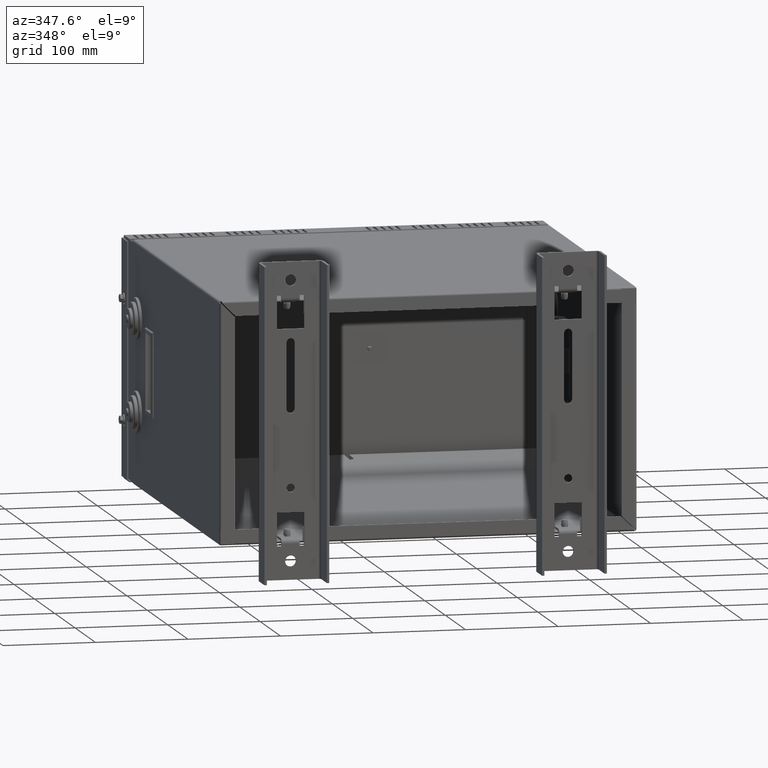
[diagram: clean part render]
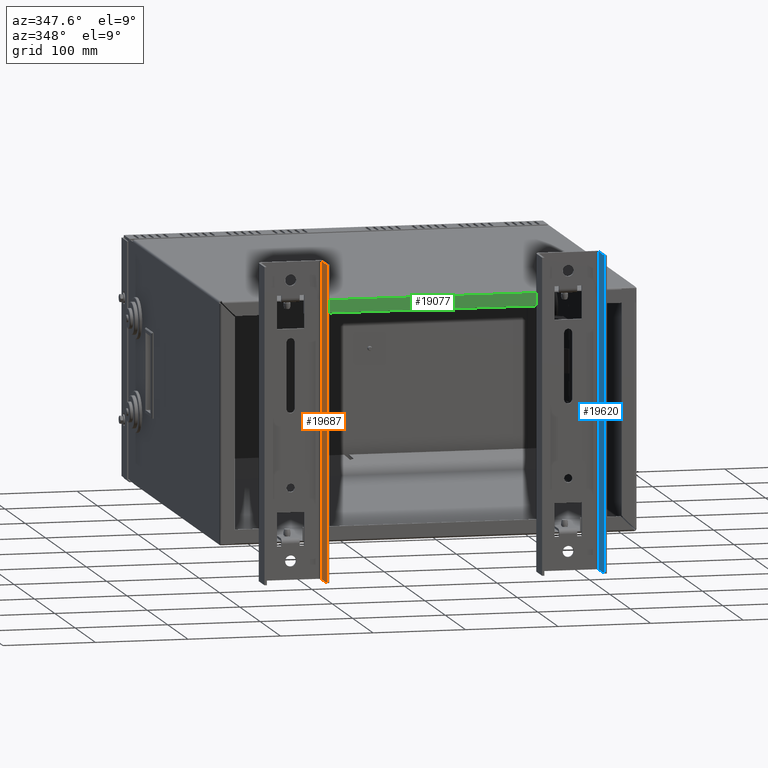
[diagram: same view with three faces highlighted in distinct colors, each labeled with its STEP entity id]
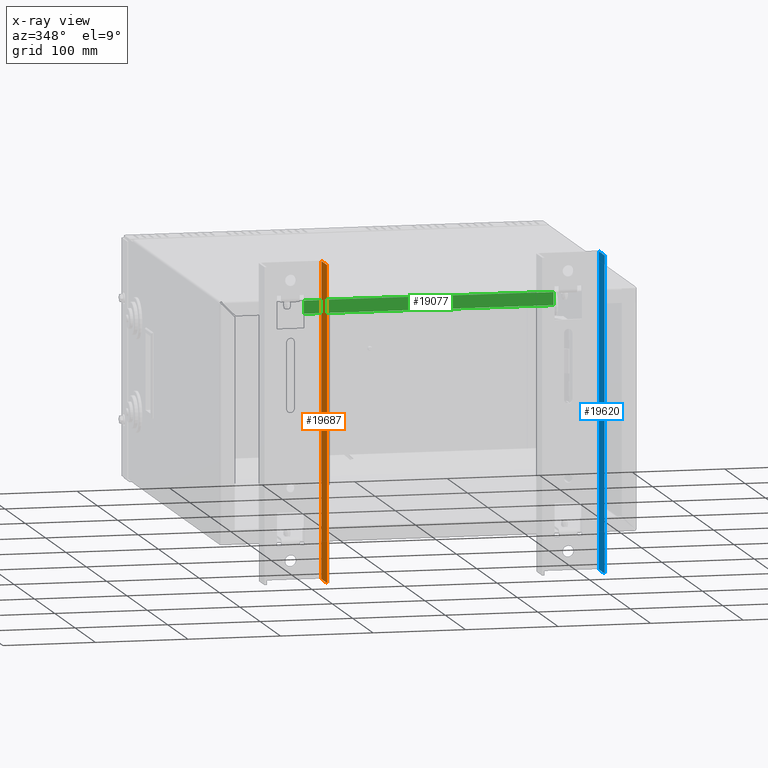
[diagram: x-ray of the same camera — body ghosted, the three highlighted faces saturated]
A machine part, auxiliary view with three faces highlighted in distinct colors.
The next image is the same camera in x-ray (body ghosted, the three faces saturated) — at least one of them is partly hidden behind the body in this view.
Their STEP definitions:

[orange] entity #19687 — the highlighted planar face has unit normal (1, 0, -0).
#1224=PLANE('',#21362);
#2749=LINE('',#31565,#4467);
#2752=LINE('',#31571,#4470);
#2753=LINE('',#31573,#4471);
#2754=LINE('',#31574,#4472);
#4467=VECTOR('',#25778,3.6);
#4470=VECTOR('',#25783,10.);
#4471=VECTOR('',#25784,3.6);
#4472=VECTOR('',#25785,10.);
#6039=FACE_OUTER_BOUND('',#7421,.T.);
#7421=EDGE_LOOP('',(#16870,#16871,#16872,#16873));
#10071=VERTEX_POINT('',#31562);
#10072=VERTEX_POINT('',#31564);
#10074=VERTEX_POINT('',#31570);
#10075=VERTEX_POINT('',#31572);
#12479=EDGE_CURVE('',#10072,#10071,#2749,.T.);
#12482=EDGE_CURVE('',#10071,#10074,#2752,.T.);
#12483=EDGE_CURVE('',#10075,#10074,#2753,.T.);
#12484=EDGE_CURVE('',#10075,#10072,#2754,.T.);
#16870=ORIENTED_EDGE('',*,*,#12482,.T.);
#16871=ORIENTED_EDGE('',*,*,#12483,.F.);
#16872=ORIENTED_EDGE('',*,*,#12484,.T.);
#16873=ORIENTED_EDGE('',*,*,#12479,.T.);
#19687=ADVANCED_FACE('',(#6039),#1224,.F.);
#21362=AXIS2_PLACEMENT_3D('',#31569,#25781,#25782);
#25778=DIRECTION('',(-6.9929806870722E-19,1.,-5.77373558311136E-17));
#25781=DIRECTION('center_axis',(1.,6.95988503929473E-17,-1.27751457982857E-18));
#25782=DIRECTION('ref_axis',(1.27751457982857E-18,5.77373558311136E-17,
1.));
#25783=DIRECTION('',(-1.27751457982857E-18,-5.77373558311136E-17,-1.));
#25784=DIRECTION('',(-6.9929806870722E-19,1.,-5.77373558311136E-17));
#25785=DIRECTION('',(1.21654944622524E-18,5.77373558311136E-17,1.));
#31562=CARTESIAN_POINT('',(108.7,-6.0000000000003,41.5));
#31564=CARTESIAN_POINT('',(108.7,-34.0000000000003,41.5));
#31565=CARTESIAN_POINT('',(108.7,5.30973355292296,41.5));
#31569=CARTESIAN_POINT('Origin',(108.7,-17.1725666117695,-128.5));
#31570=CARTESIAN_POINT('',(108.7,-6.00000000000032,-298.5));
#31571=CARTESIAN_POINT('',(108.7,-6.0000000000003,-128.5));
#31572=CARTESIAN_POINT('',(108.7,-34.0000000000003,-298.5));
#31573=CARTESIAN_POINT('',(108.7,5.30973355292294,-298.5));
#31574=CARTESIAN_POINT('',(108.7,-34.0000000000003,-298.5));

[blue] entity #19620 — the highlighted planar face has unit normal (1, 0, -0).
#1176=PLANE('',#21257);
#2629=LINE('',#31242,#4347);
#2632=LINE('',#31248,#4350);
#2633=LINE('',#31250,#4351);
#2634=LINE('',#31251,#4352);
#4347=VECTOR('',#25448,3.6);
#4350=VECTOR('',#25453,10.);
#4351=VECTOR('',#25454,3.6);
#4352=VECTOR('',#25455,10.);
#5972=FACE_OUTER_BOUND('',#7333,.T.);
#7333=EDGE_LOOP('',(#16554,#16555,#16556,#16557));
#9973=VERTEX_POINT('',#31239);
#9974=VERTEX_POINT('',#31241);
#9976=VERTEX_POINT('',#31247);
#9977=VERTEX_POINT('',#31249);
#12321=EDGE_CURVE('',#9974,#9973,#2629,.T.);
#12324=EDGE_CURVE('',#9973,#9976,#2632,.T.);
#12325=EDGE_CURVE('',#9977,#9976,#2633,.T.);
#12326=EDGE_CURVE('',#9977,#9974,#2634,.T.);
#16554=ORIENTED_EDGE('',*,*,#12324,.T.);
#16555=ORIENTED_EDGE('',*,*,#12325,.F.);
#16556=ORIENTED_EDGE('',*,*,#12326,.T.);
#16557=ORIENTED_EDGE('',*,*,#12321,.T.);
#19620=ADVANCED_FACE('',(#5972),#1176,.F.);
#21257=AXIS2_PLACEMENT_3D('',#31246,#25451,#25452);
#25448=DIRECTION('',(-6.99298068707224E-19,1.,-5.77373558311133E-17));
#25451=DIRECTION('center_axis',(1.,6.95988503929473E-17,-1.27751457982857E-18));
#25452=DIRECTION('ref_axis',(1.27751457982857E-18,5.77373558311133E-17,
1.));
#25453=DIRECTION('',(-1.27751457982857E-18,-5.77373558311133E-17,-1.));
#25454=DIRECTION('',(-6.99298068707224E-19,1.,-5.77373558311133E-17));
#25455=DIRECTION('',(1.21654944622524E-18,5.77373558311133E-17,1.));
#31239=CARTESIAN_POINT('',(408.7,-6.00000000000028,41.5));
#31241=CARTESIAN_POINT('',(408.7,-34.0000000000003,41.5));
#31242=CARTESIAN_POINT('',(408.7,5.30973355292297,41.5));
#31246=CARTESIAN_POINT('Origin',(408.7,-17.1725666117695,-128.5));
#31247=CARTESIAN_POINT('',(408.7,-6.0000000000003,-298.5));
#31248=CARTESIAN_POINT('',(408.7,-6.00000000000029,-128.5));
#31249=CARTESIAN_POINT('',(408.7,-34.0000000000003,-298.5));
#31250=CARTESIAN_POINT('',(408.7,5.30973355292295,-298.5));
#31251=CARTESIAN_POINT('',(408.7,-34.0000000000003,-298.5));

[green] entity #19077 — the highlighted planar face has unit normal (0, -1, 0).
#857=PLANE('',#20286);
#1572=LINE('',#28105,#3290);
#1582=LINE('',#28126,#3300);
#1601=LINE('',#28162,#3319);
#1602=LINE('',#28163,#3320);
#3290=VECTOR('',#22431,10.);
#3300=VECTOR('',#22447,10.);
#3319=VECTOR('',#22480,10.);
#3320=VECTOR('',#22481,10.);
#5429=FACE_OUTER_BOUND('',#6581,.T.);
#6581=EDGE_LOOP('',(#13619,#13620,#13621,#13622));
#9009=VERTEX_POINT('',#28102);
#9010=VERTEX_POINT('',#28104);
#9017=VERTEX_POINT('',#28123);
#9018=VERTEX_POINT('',#28125);
#10824=EDGE_CURVE('',#9010,#9009,#1572,.T.);
#10834=EDGE_CURVE('',#9018,#9017,#1582,.T.);
#10853=EDGE_CURVE('',#9009,#9018,#1601,.T.);
#10854=EDGE_CURVE('',#9010,#9017,#1602,.T.);
#13619=ORIENTED_EDGE('',*,*,#10824,.T.);
#13620=ORIENTED_EDGE('',*,*,#10853,.T.);
#13621=ORIENTED_EDGE('',*,*,#10834,.T.);
#13622=ORIENTED_EDGE('',*,*,#10854,.F.);
#19077=ADVANCED_FACE('',(#5429),#857,.T.);
#20286=AXIS2_PLACEMENT_3D('',#28161,#22478,#22479);
#22431=DIRECTION('',(9.21017774756871E-37,5.77373558311133E-17,1.));
#22447=DIRECTION('',(-9.21017774756871E-37,-5.77373558311133E-17,-1.));
#22478=DIRECTION('center_axis',(6.99298068707203E-19,-1.,5.77373558311133E-17));
#22479=DIRECTION('ref_axis',(1.,6.99298068707203E-19,-4.28196570746101E-35));
#22480=DIRECTION('',(-1.,-6.99298068707203E-19,4.28196570746101E-35));
#22481=DIRECTION('',(-1.,-6.41522736445121E-19,5.13218189156097E-18));
#28102=CARTESIAN_POINT('',(361.2,-4.1858446749912E-16,-1.2));
#28104=CARTESIAN_POINT('',(361.2,-1.23268118471782E-15,-15.3));
#28105=CARTESIAN_POINT('',(361.2,-5.79204910907797E-16,-3.9819154704366));
#28123=CARTESIAN_POINT('',(91.2,-1.42149166326876E-15,-15.3));
#28125=CARTESIAN_POINT('',(91.2,-6.07394946050067E-16,-1.20000000000005));
#28126=CARTESIAN_POINT('',(91.2,-1.17506374806809E-15,-11.0319154704366));
#28161=CARTESIAN_POINT('Origin',(228.435563335629,-8.32667268468867E-16,
-6.7638309408732));
#28162=CARTESIAN_POINT('',(227.317781667815,-4.16333634234434E-16,-1.2));
#28163=CARTESIAN_POINT('',(450.,-1.11022302462516E-15,-15.3));